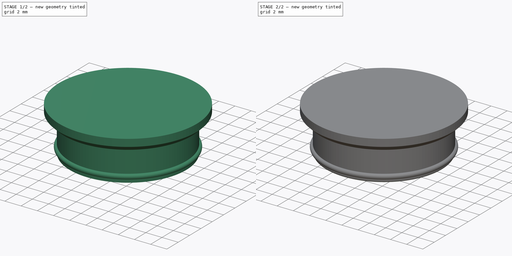
[diagram: build sequence overview — one tinted view per stage of 2, left to right]
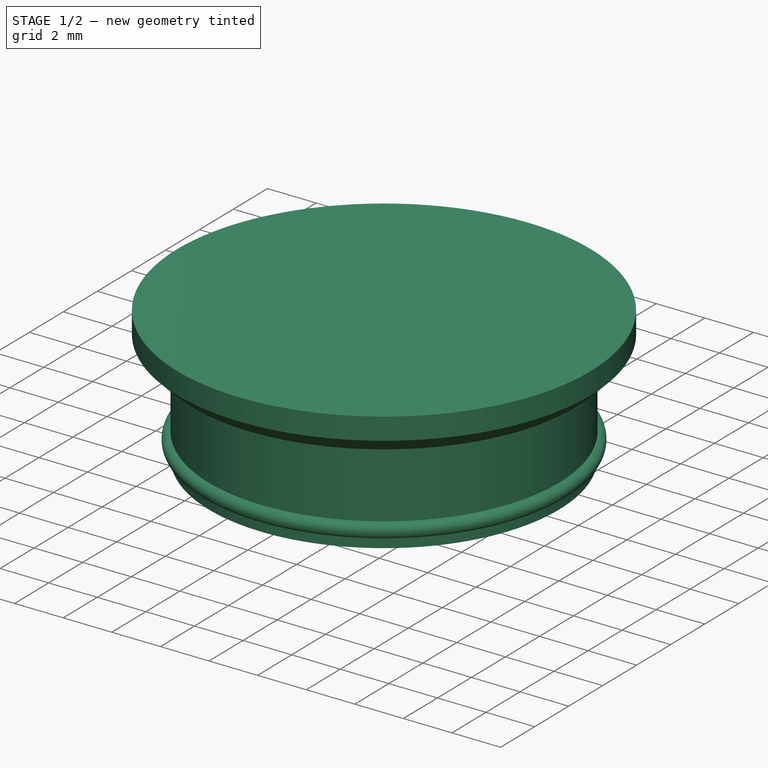
[diagram: stage 1 of 2 — iso view after this stage's code; geometry added in this stage tinted green]
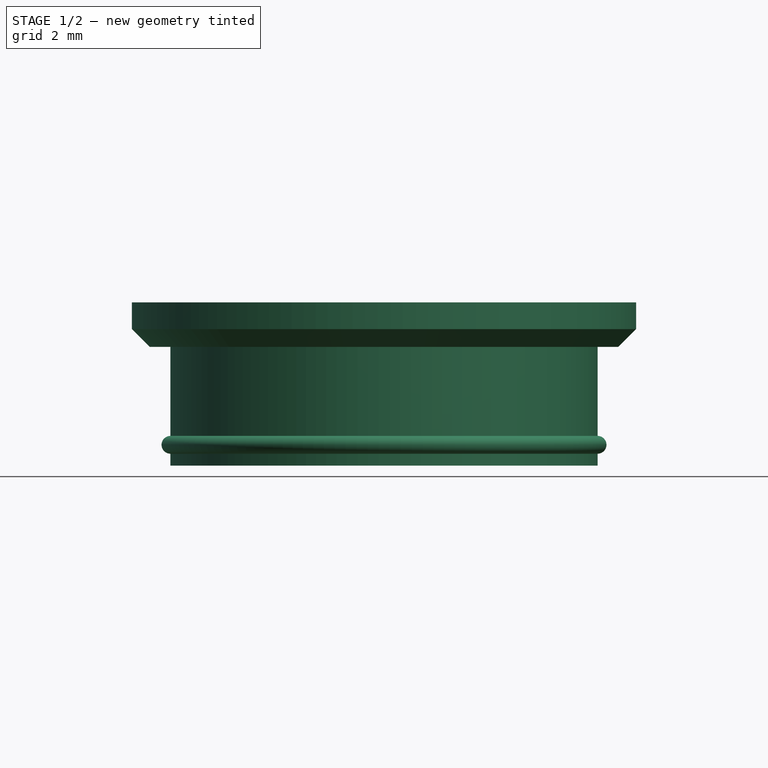
[diagram: stage 1 of 2 — front view after this stage's code; geometry added in this stage tinted green]
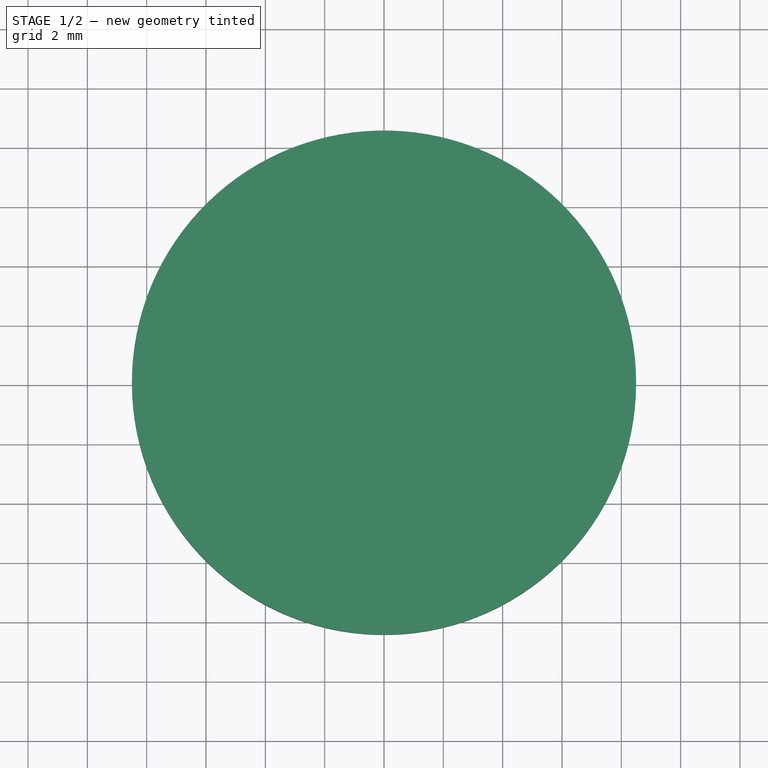
[diagram: stage 1 of 2 — top view after this stage's code; geometry added in this stage tinted green]
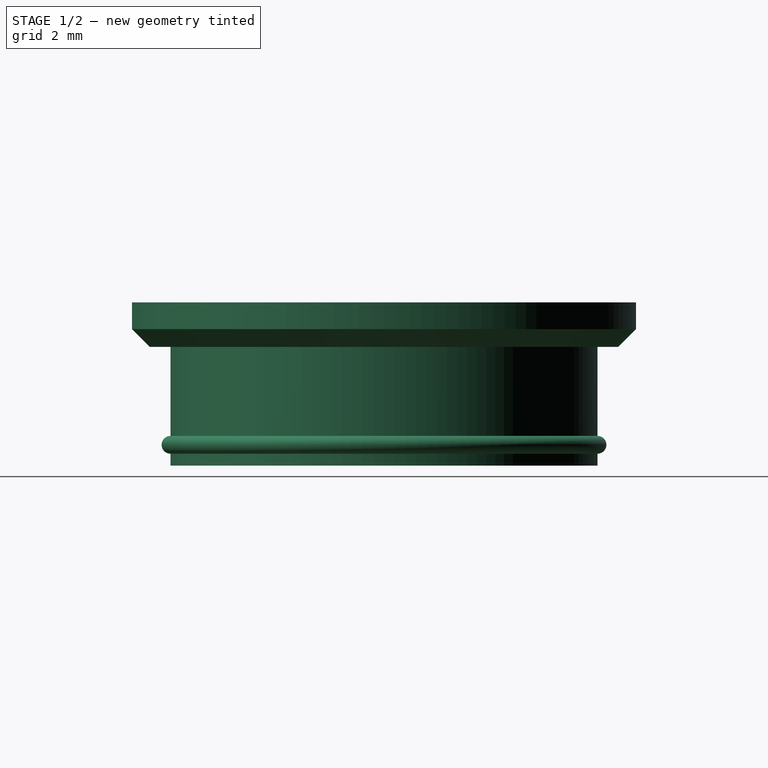
[diagram: stage 1 of 2 — right view after this stage's code; geometry added in this stage tinted green]
FCSTD DOCUMENT  (FreeCAD 1.0R39319 (Git))
Label: KorekWlewu
License: All rights reserved
LicenseURL: https://en.wikipedia.org/wiki/All_rights_reserved
objects: Sketcher::SketchObject×1, PartDesign::Revolution×1, PartDesign::Chamfer×1, PartDesign::Fillet×1, PartDesign::Body×1
note: 12 computed .brp shape members not serialized (recipe doc carries the construction recipe); baked Part::Feature solids carry a one-line shape summary decoded from their .brp

FEATURE [Sketcher::SketchObject] Sketch
  ArcFitTolerance = 1e-06
  AttachmentSupport = -> [XZ_Plane]
  FullyConstrained = true
  MakeInternals = false
  MapMode = 5
  Placement = pos=(0,0,0) rot=(1,0,0;1.5708rad)
  sketch-geometry (12):
    g0: LineSegment StartX=5.7 StartY=0 StartZ=0 EndX=7.2 EndY=0 EndZ=0
    g1: LineSegment StartX=7.2 StartY=0 StartZ=0 EndX=7.2 EndY=0.4 EndZ=0
    g2: LineSegment StartX=5.7 StartY=4 StartZ=0 EndX=5.7 EndY=0 EndZ=0
    g3: LineSegment StartX=7.2 StartY=4 StartZ=0 EndX=8.5 EndY=4 EndZ=0
    g4: LineSegment StartX=8.5 StartY=4 StartZ=0 EndX=8.5 EndY=5.5 EndZ=0
    g5: ArcOfCircle CenterX=7.2 CenterY=0.7 CenterZ=0 NormalX=0 NormalY=0 NormalZ=1 AngleXU=0 Radius=0.3 StartAngle=4.71239 EndAngle=7.85398
    g6: LineSegment StartX=5.7 StartY=4 StartZ=0 EndX=0 EndY=4 EndZ=0
    g7: LineSegment StartX=0 StartY=4 StartZ=0 EndX=0 EndY=5.5 EndZ=0
    g8: LineSegment StartX=8.5 StartY=5.5 StartZ=0 EndX=0 EndY=5.5 EndZ=0
    g9: LineSegment StartX=7.2 StartY=1 StartZ=0 EndX=7.2 EndY=4 EndZ=0
    g10: LineSegment [constr] StartX=7.5 StartY=4 StartZ=0 EndX=7.5 EndY=0 EndZ=0
    g11: LineSegment [constr] StartX=7.2 StartY=1 StartZ=0 EndX=7.2 EndY=0.4 EndZ=0
  constraints (37):
    c: Coincident(g0,g1)
    c: Coincident(g2,g0)
    c: Horizontal(g0)
    c: Vertical(g1)
    c: PointOnObject(g0,g-1)
    c: Distance(g0,g0) = 1.5
    c: Distance(g4) = 1.5
    c: Coincident(g4,g3)
    c: Vertical(g4)
    c: Distance(g1,g-2) = 7.2
    c: Coincident(g6,g2)
    c: Horizontal(g6)
    c: Coincident(g7,g6)
    c: Vertical(g7)
    c: Coincident(g8,g4)
    c: Coincident(g8,g7)
    c: Horizontal(g8)
    c: PointOnObject(g7,g-2)
    c: Distance(g-1,g8) = 5.5
    c: Coincident(g1,g5)
    c: Coincident(g9,g3)
    c: Horizontal(g3)
    c: Vertical(g9)
    c: DistanceX(g8,g8) = 8.5
    c: Vertical(g2)
    c: PointOnObject(g10,g3)
    c: PointOnObject(g10,g-1)
    c: Vertical(g10)
    c: Tangent(g10,g5)
    c: Distance(g-2,g10) = 7.5
    c: Coincident(g9,g5)
    c: Coincident(g11,g5)
    c: Coincident(g11,g1)
    c: PointOnObject(g5,g11)
    c: Vertical(g11)
    c: Distance(g5,g3) = 3
    c: DistanceY(g7,g7) = 1.5
FEATURE [PartDesign::Revolution] Revolution
  Angle = 360
  Angle2 = 60
  Axis = (0,2e-16,1)
  Base = (0,0,0)
  Placement = pos=(0,0,0) rot=(1,0,0;1.5708rad)
  Profile = -> Sketch
  ReferenceAxis = -> Sketch [V_Axis]
  Refine = true
  Reversed = true
  Suppressed = false
  Type = 0
FEATURE [PartDesign::Chamfer] Chamfer
  Angle = 45
  Base = -> Revolution [Edge11]
  BaseFeature = -> Revolution
  ChamferType = 0
  FlipDirection = false
  Placement = pos=(0,0,0) rot=(1,0,0;1.5708rad)
  Refine = true
  Size = 0.6
  Size2 = 1
  SupportTransform = false
  Suppressed = false
  UseAllEdges = false
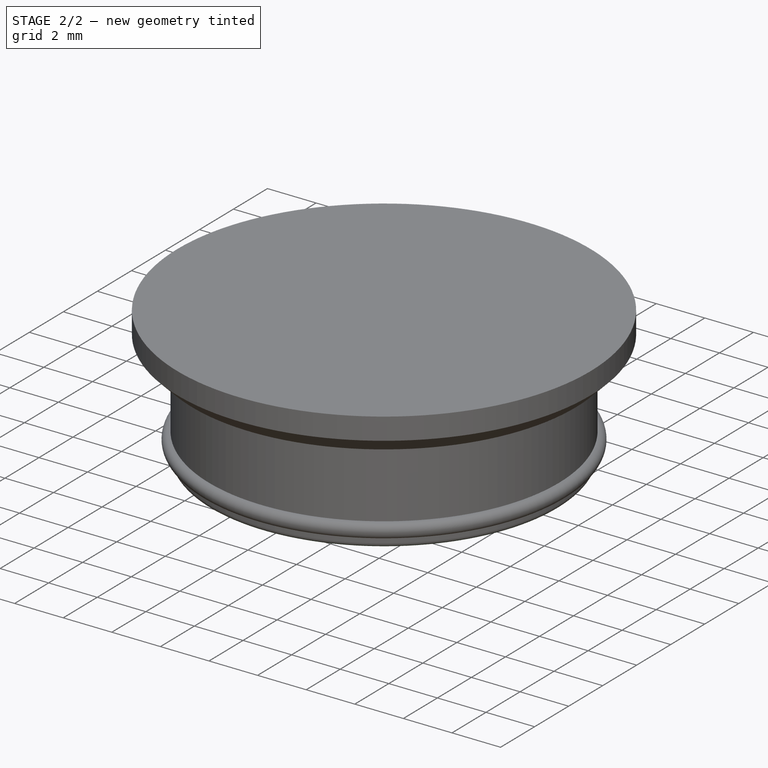
[diagram: stage 2 of 2 — iso view after this stage's code; geometry added in this stage tinted green]
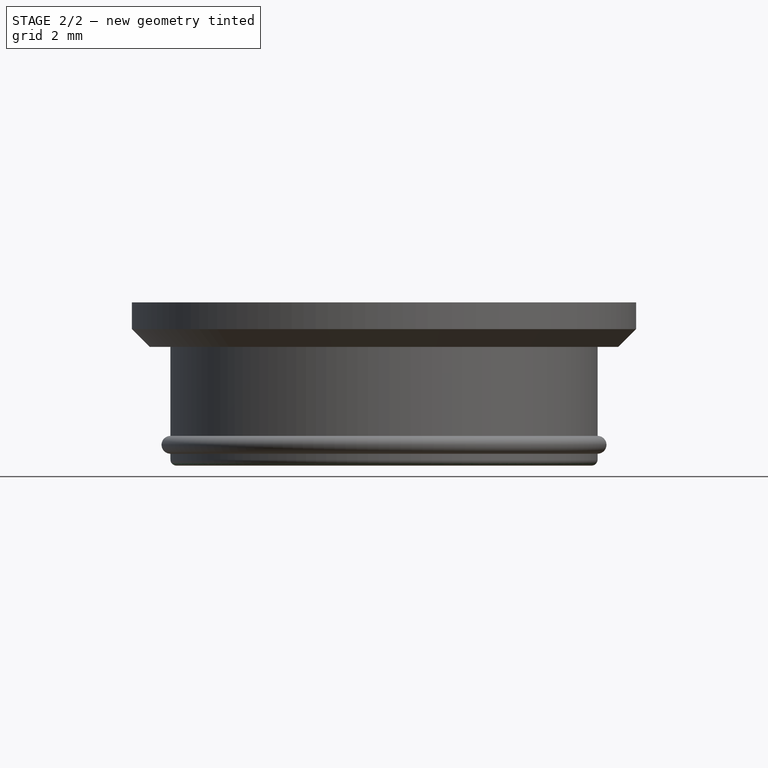
[diagram: stage 2 of 2 — front view after this stage's code; geometry added in this stage tinted green]
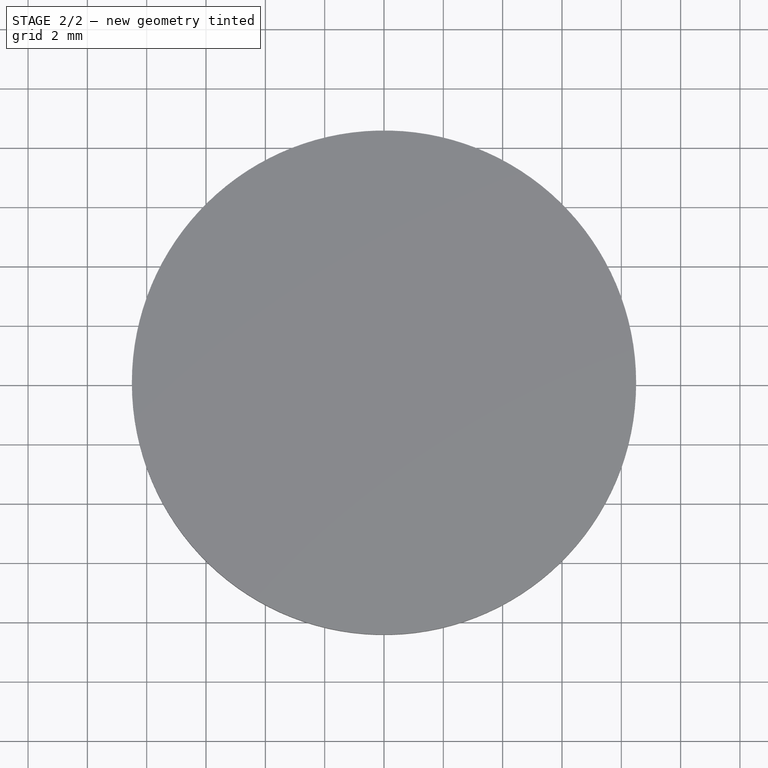
[diagram: stage 2 of 2 — top view after this stage's code; geometry added in this stage tinted green]
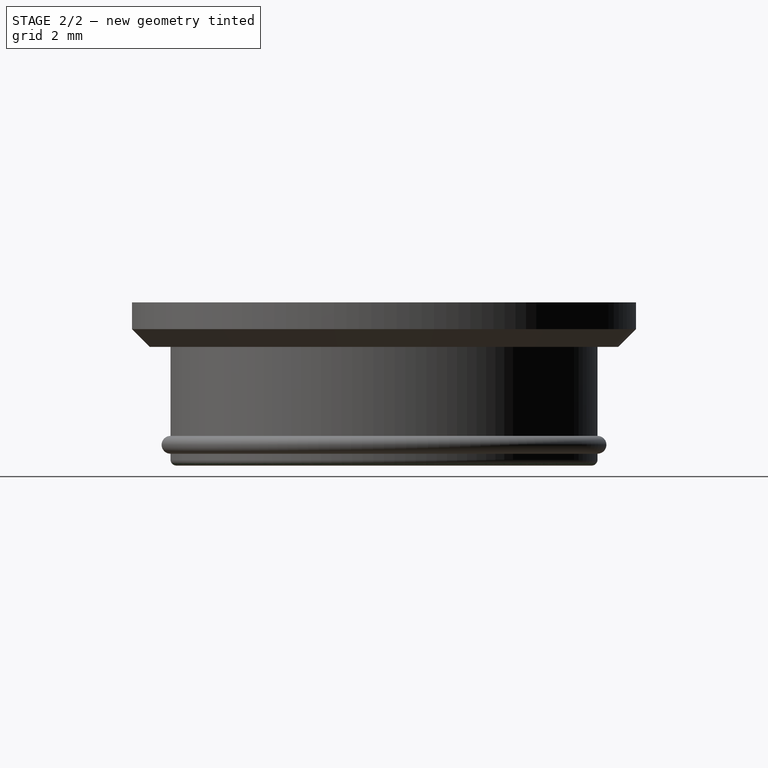
[diagram: stage 2 of 2 — right view after this stage's code; geometry added in this stage tinted green]
FEATURE [PartDesign::Fillet] Fillet
  Base = -> Chamfer [Edge11,Edge13]
  BaseFeature = -> Chamfer
  Placement = pos=(0,0,0) rot=(1,0,0;1.5708rad)
  Radius = 0.2
  Refine = true
  SupportTransform = false
  Suppressed = false
  UseAllEdges = false
FEATURE [PartDesign::Body] Body  label="Zawartość"
  AllowCompound = false
  Group = -> [Sketch,Revolution,Chamfer,Fillet]
  Origin = -> Origin
  Tip = -> Fillet
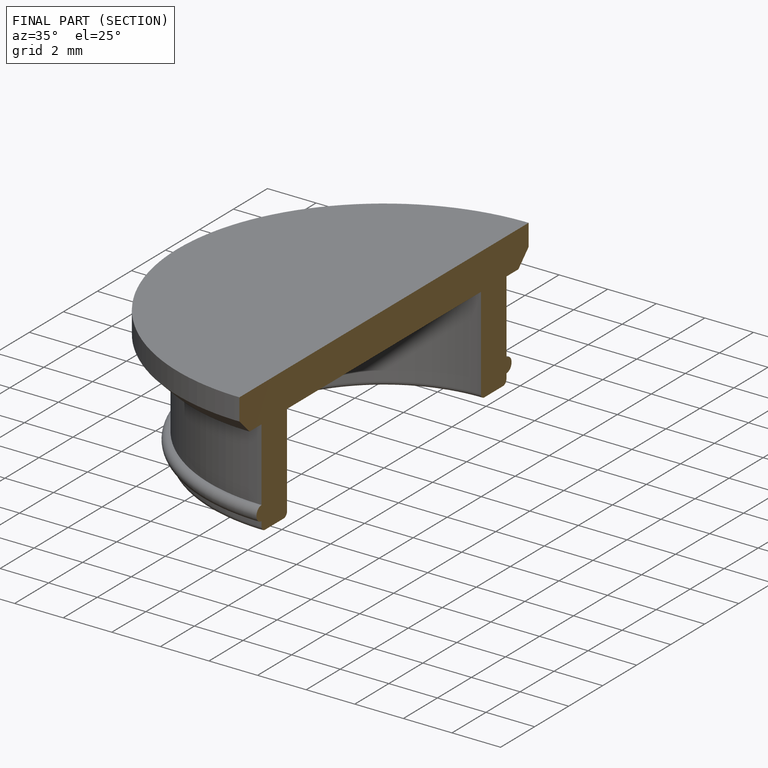
[diagram: finished part — half-section view (interior)]
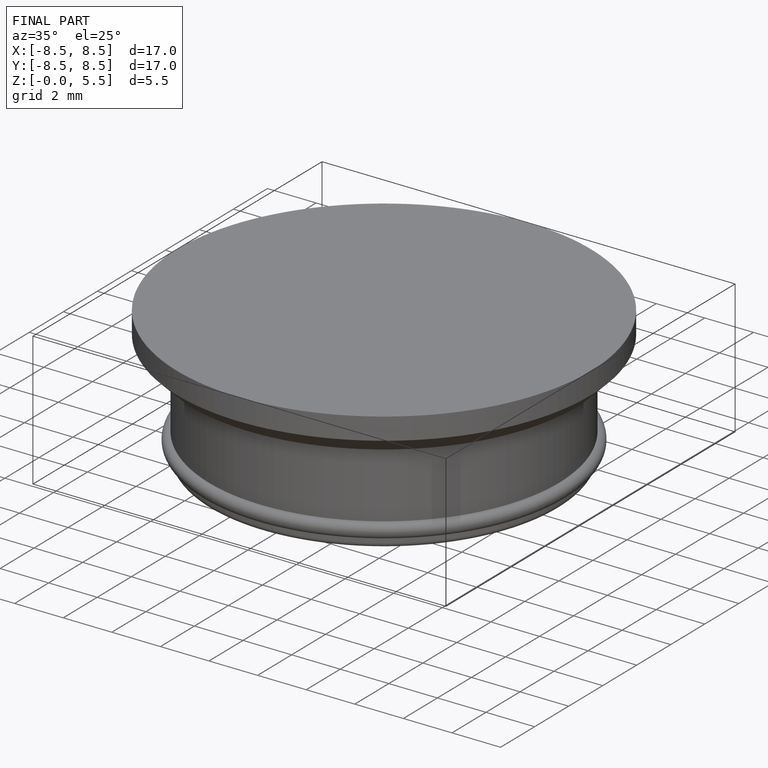
[diagram: finished part — iso view with bounding-box wireframe]
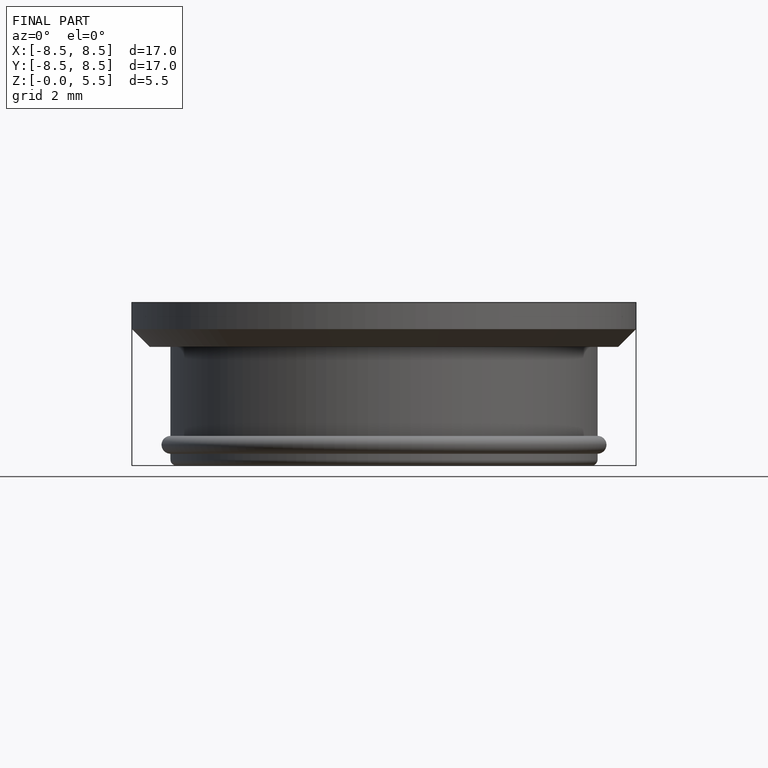
[diagram: finished part — front view with bounding-box wireframe]
